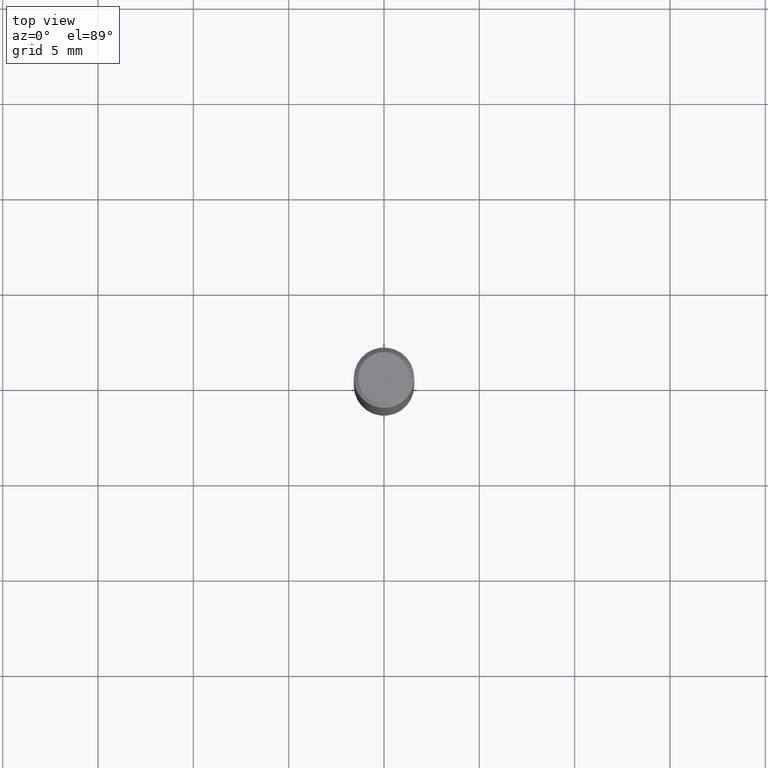
[diagram: clean part render]
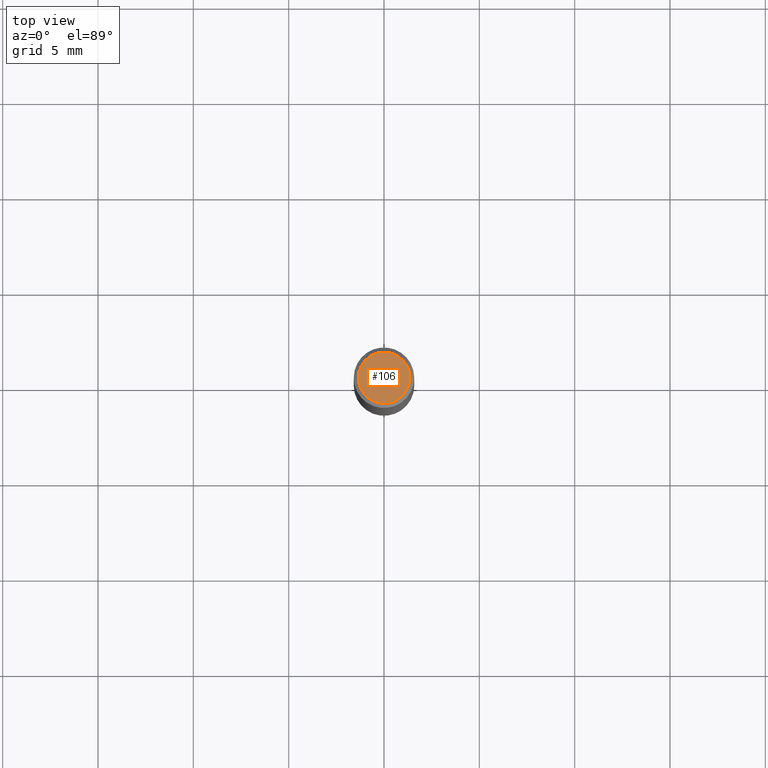
[diagram: same view with one face highlighted and labeled with its STEP entity id]
A machine part, top view. The second image highlights one B-rep face of the part: STEP entity #106.
In plain terms, the highlighted planar face has unit normal (0, -0, -1).
Its self-contained STEP definition (entity closure, byte-faithful):
#10 = PLANE ( 'NONE',  #580 ) ;
#21 = CARTESIAN_POINT ( 'NONE',  ( 1.415359278996747967E-46, -2.020757941330909984E-32, -5.787680772770392401E-18 ) ) ;
#47 = VERTEX_POINT ( 'NONE', #108 ) ;
#82 = ORIENTED_EDGE ( 'NONE', *, *, #547, .T. ) ;
#106 = ADVANCED_FACE ( 'NONE', ( #410 ), #10, .F. ) ;
#108 = CARTESIAN_POINT ( 'NONE',  ( -0.05312499999999999861, 3.873362110279099094E-16, -5.787680772773044021E-18 ) ) ;
#147 = DIRECTION ( 'NONE',  ( 2.438088387897960049E-29, -3.491481338843145188E-15, -1.000000000000000000 ) ) ;
#156 = AXIS2_PLACEMENT_3D ( 'NONE', #440, #523, #298 ) ;
#160 = DIRECTION ( 'NONE',  ( -2.445468806185136597E-29, 3.491481338843145583E-15, 1.000000000000000000 ) ) ;
#161 = DIRECTION ( 'NONE',  ( 1.000000000000000000, -6.982962677686266711E-15, 4.875930095424100059E-29 ) ) ;
#209 = EDGE_LOOP ( 'NONE', ( #399, #82 ) ) ;
#220 = VERTEX_POINT ( 'NONE', #560 ) ;
#294 = CIRCLE ( 'NONE', #156, 0.05312499999999999861 ) ;
#298 = DIRECTION ( 'NONE',  ( 1.000000000000000000, -6.982962677686266711E-15, 4.875930095424100059E-29 ) ) ;
#326 = EDGE_CURVE ( 'NONE', #47, #220, #294, .T. ) ;
#377 = CIRCLE ( 'NONE', #544, 0.05312499999999999861 ) ;
#383 = CARTESIAN_POINT ( 'NONE',  ( 7.076796394983739835E-47, -1.010378970665454992E-32, -2.893840386385196200E-18 ) ) ;
#399 = ORIENTED_EDGE ( 'NONE', *, *, #326, .T. ) ;
#410 = FACE_OUTER_BOUND ( 'NONE', #209, .T. ) ;
#440 = CARTESIAN_POINT ( 'NONE',  ( 1.415359278996747967E-46, -2.020757941330909984E-32, -5.787680772770392401E-18 ) ) ;
#496 = DIRECTION ( 'NONE',  ( -1.000000000000000000, 6.982962677686265922E-15, -4.876176775795935793E-29 ) ) ;
#523 = DIRECTION ( 'NONE',  ( -2.445468806185136597E-29, 3.491481338843145583E-15, 1.000000000000000000 ) ) ;
#544 = AXIS2_PLACEMENT_3D ( 'NONE', #21, #160, #161 ) ;
#547 = EDGE_CURVE ( 'NONE', #220, #47, #377, .T. ) ;
#560 = CARTESIAN_POINT ( 'NONE',  ( 0.05312499999999999861, -4.129888592719939842E-16, -5.787680772767651417E-18 ) ) ;
#580 = AXIS2_PLACEMENT_3D ( 'NONE', #383, #147, #496 ) ;